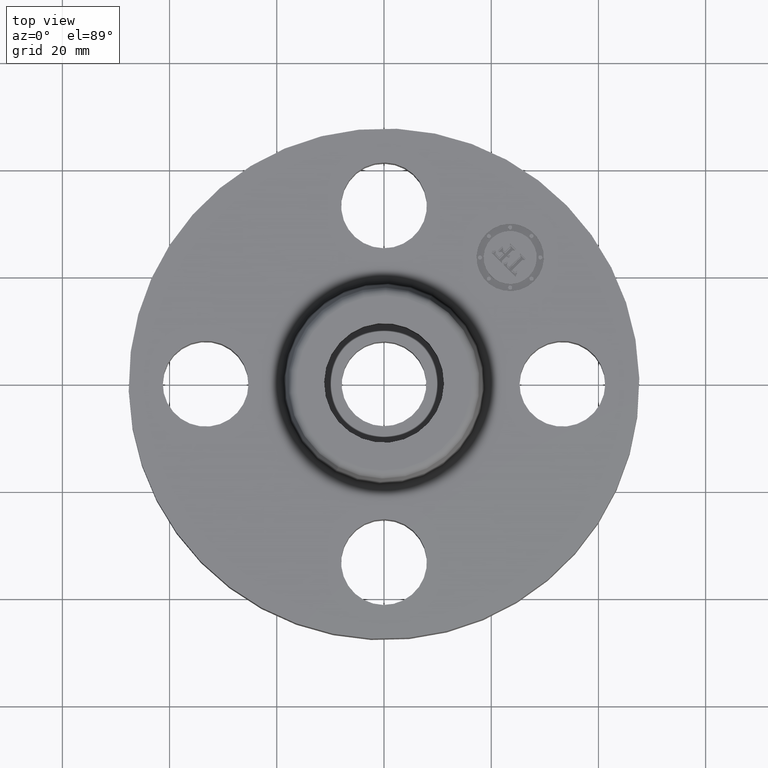
[diagram: clean part render]
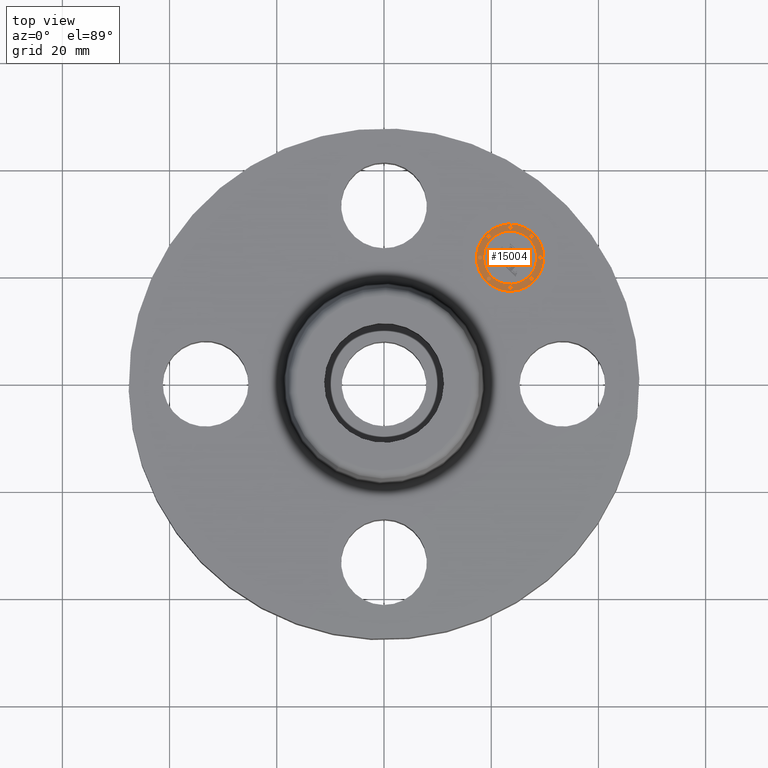
[diagram: same view with one face highlighted and labeled with its STEP entity id]
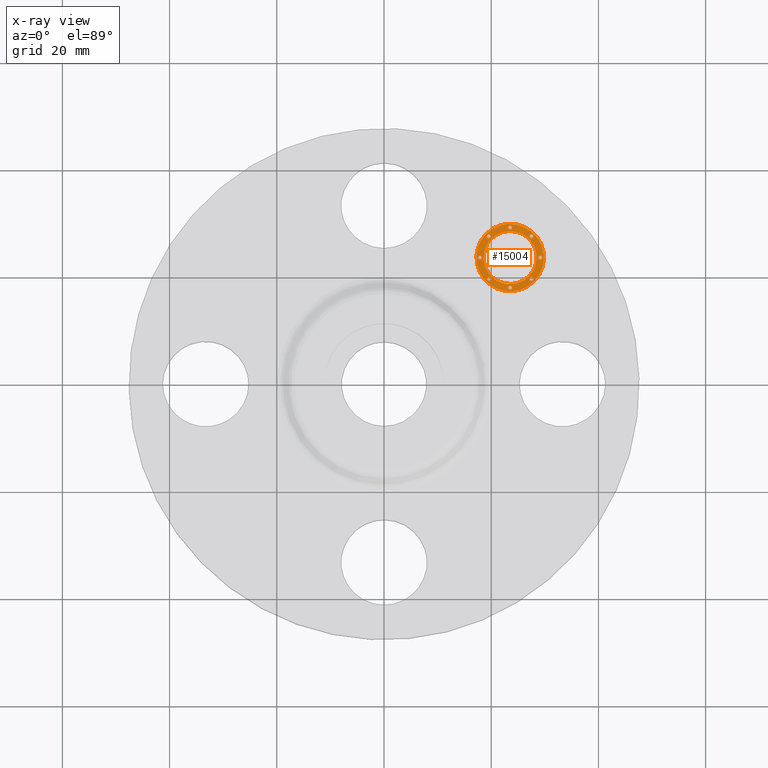
[diagram: x-ray of the same camera — body ghosted, the highlighted face saturated]
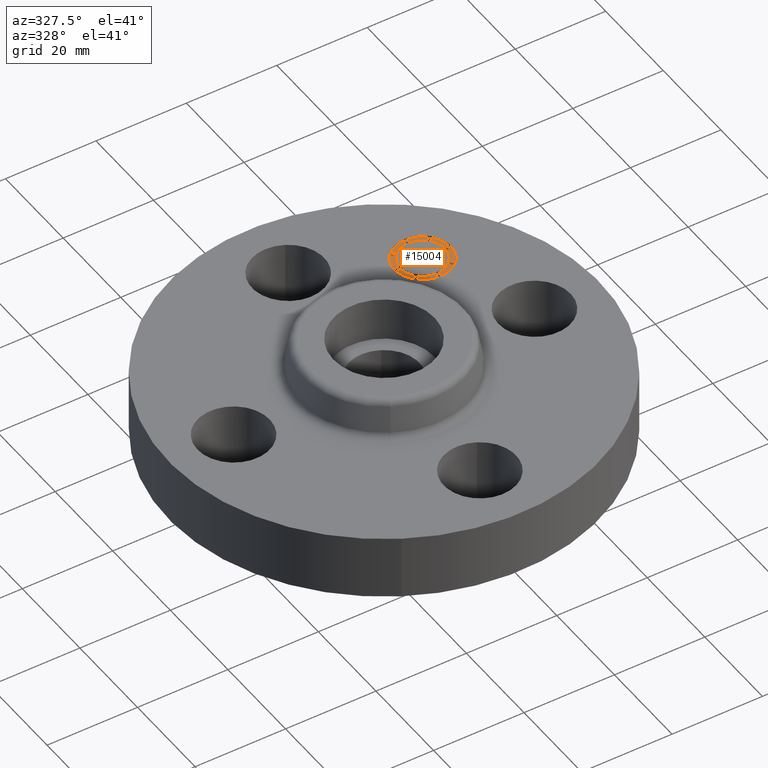
[diagram: same view with one face highlighted and labeled with its STEP entity id]
A machine part, top view. The second image highlights one B-rep face of the part: STEP entity #15004.
The next image is the same camera in x-ray: the body ghosted, the highlighted face saturated — about 0% of this face is hidden behind the body in this view.
A second angle (auxiliary view) of the same face is appended — the face is thin or edge-on in the first view.
In plain terms, the highlighted planar face has unit normal (0, -0, 1).
Its self-contained STEP definition (entity closure, byte-faithful):
#3655=AXIS2_PLACEMENT_3D('Plane Axis2P3D',#3652,#3653,#3654) ;
#14826=AXIS2_PLACEMENT_3D('Circle Axis2P3D',#14824,#14825,$) ;
#14835=AXIS2_PLACEMENT_3D('Circle Axis2P3D',#14833,#14834,$) ;
#14844=AXIS2_PLACEMENT_3D('Circle Axis2P3D',#14842,#14843,$) ;
#14853=AXIS2_PLACEMENT_3D('Circle Axis2P3D',#14851,#14852,$) ;
#14862=AXIS2_PLACEMENT_3D('Circle Axis2P3D',#14860,#14861,$) ;
#14871=AXIS2_PLACEMENT_3D('Circle Axis2P3D',#14869,#14870,$) ;
#14880=AXIS2_PLACEMENT_3D('Circle Axis2P3D',#14878,#14879,$) ;
#14889=AXIS2_PLACEMENT_3D('Circle Axis2P3D',#14887,#14888,$) ;
#14898=AXIS2_PLACEMENT_3D('Circle Axis2P3D',#14896,#14897,$) ;
#14907=AXIS2_PLACEMENT_3D('Circle Axis2P3D',#14905,#14906,$) ;
#14916=AXIS2_PLACEMENT_3D('Circle Axis2P3D',#14914,#14915,$) ;
#14925=AXIS2_PLACEMENT_3D('Circle Axis2P3D',#14923,#14924,$) ;
#14934=AXIS2_PLACEMENT_3D('Circle Axis2P3D',#14932,#14933,$) ;
#14943=AXIS2_PLACEMENT_3D('Circle Axis2P3D',#14941,#14942,$) ;
#14952=AXIS2_PLACEMENT_3D('Circle Axis2P3D',#14950,#14951,$) ;
#14961=AXIS2_PLACEMENT_3D('Circle Axis2P3D',#14959,#14960,$) ;
#14970=AXIS2_PLACEMENT_3D('Circle Axis2P3D',#14968,#14969,$) ;
#14979=AXIS2_PLACEMENT_3D('Circle Axis2P3D',#14977,#14978,$) ;
#14988=AXIS2_PLACEMENT_3D('Circle Axis2P3D',#14986,#14987,$) ;
#14997=AXIS2_PLACEMENT_3D('Circle Axis2P3D',#14995,#14996,$) ;
#3652=CARTESIAN_POINT('Axis2P3D Location',(0.,0.,0.545000000002)) ;
#14824=CARTESIAN_POINT('Axis2P3D Location',(0.926309883358,0.926309883358,0.545000000002)) ;
#14828=CARTESIAN_POINT('Vertex',(0.751300955014,1.1013188117,0.545000000002)) ;
#14830=CARTESIAN_POINT('Vertex',(1.1013188117,0.751300955014,0.545000000002)) ;
#14833=CARTESIAN_POINT('Axis2P3D Location',(0.926309883358,0.926309883358,0.545000000002)) ;
#14842=CARTESIAN_POINT('Axis2P3D Location',(0.926309883358,0.926309883358,0.545000000002)) ;
#14846=CARTESIAN_POINT('Vertex',(1.06419570569,0.788424061026,0.545000000002)) ;
#14848=CARTESIAN_POINT('Vertex',(0.788424061026,1.06419570569,0.545000000002)) ;
#14851=CARTESIAN_POINT('Axis2P3D Location',(0.926309883358,0.926309883358,0.545000000002)) ;
#14860=CARTESIAN_POINT('Axis2P3D Location',(0.76986250802,0.76986250802,0.545000000002)) ;
#14864=CARTESIAN_POINT('Vertex',(0.780469109738,0.759255906302,0.545000000002)) ;
#14866=CARTESIAN_POINT('Vertex',(0.759255906302,0.780469109738,0.545000000002)) ;
#14869=CARTESIAN_POINT('Axis2P3D Location',(0.76986250802,0.76986250802,0.545000000002)) ;
#14878=CARTESIAN_POINT('Axis2P3D Location',(0.76986250802,1.0827572587,0.545000000002)) ;
#14882=CARTESIAN_POINT('Vertex',(0.780469109738,1.07215065698,0.545000000002)) ;
#14884=CARTESIAN_POINT('Vertex',(0.759255906302,1.09336386041,0.545000000002)) ;
#14887=CARTESIAN_POINT('Axis2P3D Location',(0.76986250802,1.0827572587,0.545000000002)) ;
#14896=CARTESIAN_POINT('Axis2P3D Location',(0.705059883357,0.926309883358,0.545000000002)) ;
#14900=CARTESIAN_POINT('Vertex',(0.715666485075,0.91570328164,0.545000000002)) ;
#14902=CARTESIAN_POINT('Vertex',(0.694453281639,0.936916485076,0.545000000002)) ;
#14905=CARTESIAN_POINT('Axis2P3D Location',(0.705059883357,0.926309883358,0.545000000002)) ;
#14914=CARTESIAN_POINT('Axis2P3D Location',(1.0827572587,1.0827572587,0.545000000002)) ;
#14918=CARTESIAN_POINT('Vertex',(1.09336386041,1.07215065698,0.545000000002)) ;
#14920=CARTESIAN_POINT('Vertex',(1.07215065698,1.09336386041,0.545000000002)) ;
#14923=CARTESIAN_POINT('Axis2P3D Location',(1.0827572587,1.0827572587,0.545000000002)) ;
#14932=CARTESIAN_POINT('Axis2P3D Location',(0.926309883358,1.14755988336,0.545000000002)) ;
#14936=CARTESIAN_POINT('Vertex',(0.936916485076,1.13695328164,0.545000000002)) ;
#14938=CARTESIAN_POINT('Vertex',(0.91570328164,1.15816648508,0.545000000002)) ;
#14941=CARTESIAN_POINT('Axis2P3D Location',(0.926309883358,1.14755988336,0.545000000002)) ;
#14950=CARTESIAN_POINT('Axis2P3D Location',(1.0827572587,0.76986250802,0.545000000002)) ;
#14954=CARTESIAN_POINT('Vertex',(1.07215065698,0.780469109738,0.545000000002)) ;
#14956=CARTESIAN_POINT('Vertex',(1.09336386041,0.759255906302,0.545000000002)) ;
#14959=CARTESIAN_POINT('Axis2P3D Location',(1.0827572587,0.76986250802,0.545000000002)) ;
#14968=CARTESIAN_POINT('Axis2P3D Location',(0.926309883358,0.705059883357,0.545000000002)) ;
#14972=CARTESIAN_POINT('Vertex',(0.91570328164,0.715666485075,0.545000000002)) ;
#14974=CARTESIAN_POINT('Vertex',(0.936916485076,0.694453281639,0.545000000002)) ;
#14977=CARTESIAN_POINT('Axis2P3D Location',(0.926309883358,0.705059883357,0.545000000002)) ;
#14986=CARTESIAN_POINT('Axis2P3D Location',(1.14755988336,0.926309883358,0.545000000002)) ;
#14990=CARTESIAN_POINT('Vertex',(1.13695328164,0.936916485076,0.545000000002)) ;
#14992=CARTESIAN_POINT('Vertex',(1.15816648508,0.91570328164,0.545000000002)) ;
#14995=CARTESIAN_POINT('Axis2P3D Location',(1.14755988336,0.926309883358,0.545000000002)) ;
#3653=DIRECTION('Axis2P3D Direction',(0.,-0.,0.0393700787402)) ;
#3654=DIRECTION('Axis2P3D XDirection',(0.027838849653,0.027838849653,0.)) ;
#14825=DIRECTION('Axis2P3D Direction',(0.,-0.,0.0393700787402)) ;
#14834=DIRECTION('Axis2P3D Direction',(0.,-0.,0.0393700787402)) ;
#14843=DIRECTION('Axis2P3D Direction',(0.,-0.,0.0393700787402)) ;
#14852=DIRECTION('Axis2P3D Direction',(0.,-0.,0.0393700787402)) ;
#14861=DIRECTION('Axis2P3D Direction',(0.,-0.,0.0393700787402)) ;
#14870=DIRECTION('Axis2P3D Direction',(0.,-0.,0.0393700787402)) ;
#14879=DIRECTION('Axis2P3D Direction',(0.,-0.,0.0393700787402)) ;
#14888=DIRECTION('Axis2P3D Direction',(0.,-0.,0.0393700787402)) ;
#14897=DIRECTION('Axis2P3D Direction',(0.,-0.,0.0393700787402)) ;
#14906=DIRECTION('Axis2P3D Direction',(0.,-0.,0.0393700787402)) ;
#14915=DIRECTION('Axis2P3D Direction',(0.,-0.,0.0393700787402)) ;
#14924=DIRECTION('Axis2P3D Direction',(0.,-0.,0.0393700787402)) ;
#14933=DIRECTION('Axis2P3D Direction',(0.,-0.,0.0393700787402)) ;
#14942=DIRECTION('Axis2P3D Direction',(0.,-0.,0.0393700787402)) ;
#14951=DIRECTION('Axis2P3D Direction',(0.,-0.,0.0393700787402)) ;
#14960=DIRECTION('Axis2P3D Direction',(0.,-0.,0.0393700787402)) ;
#14969=DIRECTION('Axis2P3D Direction',(0.,-0.,0.0393700787402)) ;
#14978=DIRECTION('Axis2P3D Direction',(0.,-0.,0.0393700787402)) ;
#14987=DIRECTION('Axis2P3D Direction',(0.,-0.,0.0393700787402)) ;
#14996=DIRECTION('Axis2P3D Direction',(0.,-0.,0.0393700787402)) ;
#14839=ORIENTED_EDGE('',*,*,#14832,.T.) ;
#14840=ORIENTED_EDGE('',*,*,#14837,.T.) ;
#14857=ORIENTED_EDGE('',*,*,#14850,.F.) ;
#14858=ORIENTED_EDGE('',*,*,#14855,.F.) ;
#14875=ORIENTED_EDGE('',*,*,#14868,.F.) ;
#14876=ORIENTED_EDGE('',*,*,#14873,.F.) ;
#14893=ORIENTED_EDGE('',*,*,#14886,.F.) ;
#14894=ORIENTED_EDGE('',*,*,#14891,.F.) ;
#14911=ORIENTED_EDGE('',*,*,#14904,.F.) ;
#14912=ORIENTED_EDGE('',*,*,#14909,.F.) ;
#14929=ORIENTED_EDGE('',*,*,#14922,.F.) ;
#14930=ORIENTED_EDGE('',*,*,#14927,.F.) ;
#14947=ORIENTED_EDGE('',*,*,#14940,.F.) ;
#14948=ORIENTED_EDGE('',*,*,#14945,.F.) ;
#14965=ORIENTED_EDGE('',*,*,#14958,.F.) ;
#14966=ORIENTED_EDGE('',*,*,#14963,.F.) ;
#14983=ORIENTED_EDGE('',*,*,#14976,.F.) ;
#14984=ORIENTED_EDGE('',*,*,#14981,.F.) ;
#15001=ORIENTED_EDGE('',*,*,#14994,.F.) ;
#15002=ORIENTED_EDGE('',*,*,#14999,.F.) ;
#14859=FACE_BOUND('',#14856,.T.) ;
#14877=FACE_BOUND('',#14874,.T.) ;
#14895=FACE_BOUND('',#14892,.T.) ;
#14913=FACE_BOUND('',#14910,.T.) ;
#14931=FACE_BOUND('',#14928,.T.) ;
#14949=FACE_BOUND('',#14946,.T.) ;
#14967=FACE_BOUND('',#14964,.T.) ;
#14985=FACE_BOUND('',#14982,.T.) ;
#15003=FACE_BOUND('',#15000,.T.) ;
#15004=ADVANCED_FACE('PartBody',(#14841,#14859,#14877,#14895,#14913,#14931,#14949,#14967,#14985,#15003),#3656,.T.) ;
#14827=CIRCLE('generated circle',#14826,0.247500000001) ;
#14836=CIRCLE('generated circle',#14835,0.247500000001) ;
#14845=CIRCLE('generated circle',#14844,0.195000000001) ;
#14854=CIRCLE('generated circle',#14853,0.195000000001) ;
#14863=CIRCLE('generated circle',#14862,0.0150000000001) ;
#14872=CIRCLE('generated circle',#14871,0.0150000000001) ;
#14881=CIRCLE('generated circle',#14880,0.0150000000001) ;
#14890=CIRCLE('generated circle',#14889,0.0150000000001) ;
#14899=CIRCLE('generated circle',#14898,0.0150000000001) ;
#14908=CIRCLE('generated circle',#14907,0.0150000000001) ;
#14917=CIRCLE('generated circle',#14916,0.0150000000001) ;
#14926=CIRCLE('generated circle',#14925,0.0150000000001) ;
#14935=CIRCLE('generated circle',#14934,0.0150000000001) ;
#14944=CIRCLE('generated circle',#14943,0.0150000000001) ;
#14953=CIRCLE('generated circle',#14952,0.0150000000001) ;
#14962=CIRCLE('generated circle',#14961,0.0150000000001) ;
#14971=CIRCLE('generated circle',#14970,0.0150000000001) ;
#14980=CIRCLE('generated circle',#14979,0.0150000000001) ;
#14989=CIRCLE('generated circle',#14988,0.0150000000001) ;
#14998=CIRCLE('generated circle',#14997,0.0150000000001) ;
#14832=EDGE_CURVE('',#14829,#14831,#14827,.T.) ;
#14837=EDGE_CURVE('',#14831,#14829,#14836,.T.) ;
#14850=EDGE_CURVE('',#14847,#14849,#14845,.T.) ;
#14855=EDGE_CURVE('',#14849,#14847,#14854,.T.) ;
#14868=EDGE_CURVE('',#14865,#14867,#14863,.T.) ;
#14873=EDGE_CURVE('',#14867,#14865,#14872,.T.) ;
#14886=EDGE_CURVE('',#14883,#14885,#14881,.T.) ;
#14891=EDGE_CURVE('',#14885,#14883,#14890,.T.) ;
#14904=EDGE_CURVE('',#14901,#14903,#14899,.T.) ;
#14909=EDGE_CURVE('',#14903,#14901,#14908,.T.) ;
#14922=EDGE_CURVE('',#14919,#14921,#14917,.T.) ;
#14927=EDGE_CURVE('',#14921,#14919,#14926,.T.) ;
#14940=EDGE_CURVE('',#14937,#14939,#14935,.T.) ;
#14945=EDGE_CURVE('',#14939,#14937,#14944,.T.) ;
#14958=EDGE_CURVE('',#14955,#14957,#14953,.T.) ;
#14963=EDGE_CURVE('',#14957,#14955,#14962,.T.) ;
#14976=EDGE_CURVE('',#14973,#14975,#14971,.T.) ;
#14981=EDGE_CURVE('',#14975,#14973,#14980,.T.) ;
#14994=EDGE_CURVE('',#14991,#14993,#14989,.T.) ;
#14999=EDGE_CURVE('',#14993,#14991,#14998,.T.) ;
#14838=EDGE_LOOP('',(#14839,#14840)) ;
#14856=EDGE_LOOP('',(#14857,#14858)) ;
#14874=EDGE_LOOP('',(#14875,#14876)) ;
#14892=EDGE_LOOP('',(#14893,#14894)) ;
#14910=EDGE_LOOP('',(#14911,#14912)) ;
#14928=EDGE_LOOP('',(#14929,#14930)) ;
#14946=EDGE_LOOP('',(#14947,#14948)) ;
#14964=EDGE_LOOP('',(#14965,#14966)) ;
#14982=EDGE_LOOP('',(#14983,#14984)) ;
#15000=EDGE_LOOP('',(#15001,#15002)) ;
#14841=FACE_OUTER_BOUND('',#14838,.T.) ;
#3656=PLANE('',#3655) ;
#14829=VERTEX_POINT('',#14828) ;
#14831=VERTEX_POINT('',#14830) ;
#14847=VERTEX_POINT('',#14846) ;
#14849=VERTEX_POINT('',#14848) ;
#14865=VERTEX_POINT('',#14864) ;
#14867=VERTEX_POINT('',#14866) ;
#14883=VERTEX_POINT('',#14882) ;
#14885=VERTEX_POINT('',#14884) ;
#14901=VERTEX_POINT('',#14900) ;
#14903=VERTEX_POINT('',#14902) ;
#14919=VERTEX_POINT('',#14918) ;
#14921=VERTEX_POINT('',#14920) ;
#14937=VERTEX_POINT('',#14936) ;
#14939=VERTEX_POINT('',#14938) ;
#14955=VERTEX_POINT('',#14954) ;
#14957=VERTEX_POINT('',#14956) ;
#14973=VERTEX_POINT('',#14972) ;
#14975=VERTEX_POINT('',#14974) ;
#14991=VERTEX_POINT('',#14990) ;
#14993=VERTEX_POINT('',#14992) ;